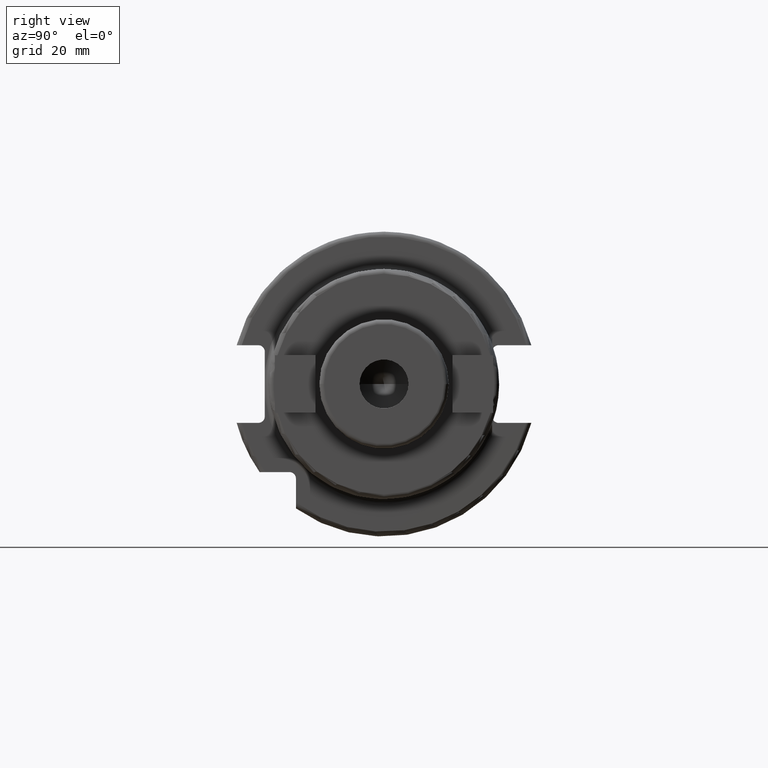
[diagram: clean part render]
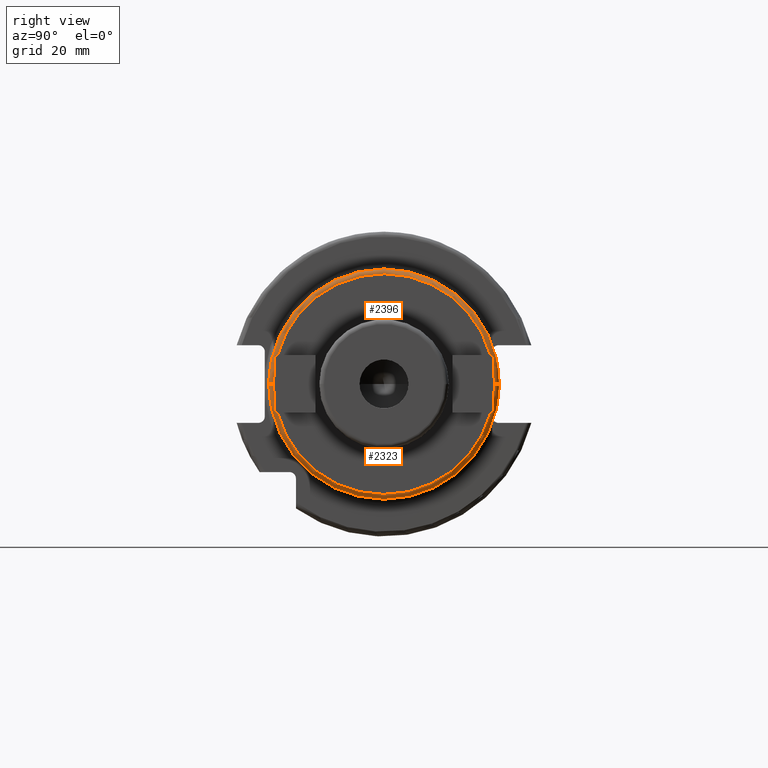
[diagram: same view with one multi-face feature highlighted, each face labeled with its STEP entity id]
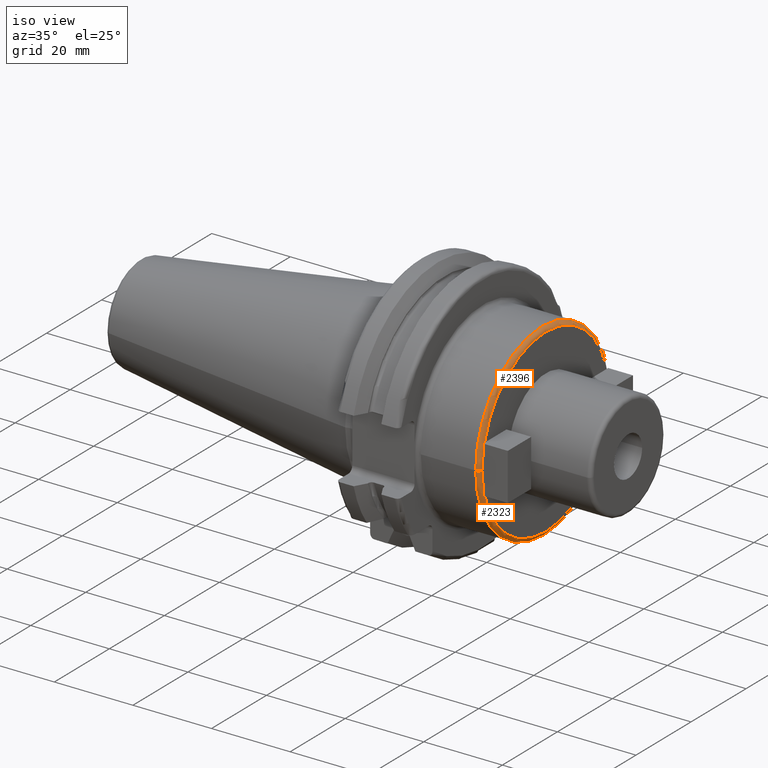
[diagram: same view with one multi-face feature highlighted, each face labeled with its STEP entity id]
A machine part, right view. The highlighted faces form ONE feature: a constant-radius fillet chain: 2 tangent blend faces with common blend radius 1 mm. The faces share edges in the B-rep.
A second angle (iso view) of the same feature is appended — it is thin or edge-on in the first view.
Their STEP definitions:
[1] entity #2323 (Torus):
#331=CARTESIAN_POINT('',(3.4E1,0.E0,0.E0));
#332=DIRECTION('',(1.E0,0.E0,0.E0));
#333=DIRECTION('',(0.E0,-1.E0,0.E0));
#334=AXIS2_PLACEMENT_3D('',#331,#332,#333);
#345=CARTESIAN_POINT('',(3.5E1,0.E0,0.E0));
#346=DIRECTION('',(1.E0,0.E0,0.E0));
#347=DIRECTION('',(0.E0,-9.891304347826E-1,-1.470407528094E-1));
#348=AXIS2_PLACEMENT_3D('',#345,#346,#347);
#350=CARTESIAN_POINT('',(3.5E1,0.E0,0.E0));
#351=DIRECTION('',(1.E0,0.E0,0.E0));
#352=DIRECTION('',(0.E0,9.653740570076E-1,-2.608695652174E-1));
#353=AXIS2_PLACEMENT_3D('',#350,#351,#352);
#355=CARTESIAN_POINT('',(3.4E1,2.3E1,0.E0));
#356=DIRECTION('',(0.E0,0.E0,1.E0));
#357=DIRECTION('',(1.E0,0.E0,0.E0));
#358=AXIS2_PLACEMENT_3D('',#355,#356,#357);
#402=CARTESIAN_POINT('',(3.4E1,-2.3E1,0.E0));
#403=DIRECTION('',(0.E0,0.E0,-1.E0));
#404=DIRECTION('',(1.E0,0.E0,0.E0));
#405=AXIS2_PLACEMENT_3D('',#402,#403,#404);
#429=CARTESIAN_POINT('',(3.5E1,0.E0,0.E0));
#430=DIRECTION('',(1.E0,0.E0,0.E0));
#431=DIRECTION('',(0.E0,-9.653740570076E-1,-2.608695652174E-1));
#432=AXIS2_PLACEMENT_3D('',#429,#430,#431);
#460=CARTESIAN_POINT('',(3.5E1,0.E0,0.E0));
#461=DIRECTION('',(1.E0,0.E0,0.E0));
#462=DIRECTION('',(0.E0,9.891304347826E-1,-1.470407528094E-1));
#463=AXIS2_PLACEMENT_3D('',#460,#461,#462);
#469=CARTESIAN_POINT('',(3.5E1,0.E0,0.E0));
#470=DIRECTION('',(1.E0,0.E0,0.E0));
#471=DIRECTION('',(0.E0,-1.E0,0.E0));
#472=AXIS2_PLACEMENT_3D('',#469,#470,#471);
#1766=CARTESIAN_POINT('',(3.4E1,-2.4E1,0.E0));
#1767=CARTESIAN_POINT('',(3.4E1,2.4E1,0.E0));
#1768=VERTEX_POINT('',#1766);
#1769=VERTEX_POINT('',#1767);
#1774=CARTESIAN_POINT('',(3.5E1,-2.3E1,0.E0));
#1775=VERTEX_POINT('',#1774);
#1776=CARTESIAN_POINT('',(3.5E1,2.3E1,0.E0));
#1777=VERTEX_POINT('',#1776);
#1818=CARTESIAN_POINT('',(3.5E1,2.220360331117E1,-6.E0));
#1819=VERTEX_POINT('',#1818);
#1820=CARTESIAN_POINT('',(3.5E1,2.275E1,-3.381937314617E0));
#1822=VERTEX_POINT('',#1820);
#1829=CARTESIAN_POINT('',(3.5E1,-2.275E1,-3.381937314617E0));
#1831=VERTEX_POINT('',#1829);
#1832=CARTESIAN_POINT('',(3.5E1,-2.220360331117E1,-6.E0));
#1834=VERTEX_POINT('',#1832);
#2301=CARTESIAN_POINT('',(3.4E1,0.E0,0.E0));
#2302=DIRECTION('',(1.E0,0.E0,0.E0));
#2303=DIRECTION('',(0.E0,9.999810241799E-1,6.160461033104E-3));
#2304=AXIS2_PLACEMENT_3D('',#2301,#2302,#2303);
#2305=TOROIDAL_SURFACE('',#2304,2.3E1,1.E0);
#2307=ORIENTED_EDGE('',*,*,#2306,.T.);
#2309=ORIENTED_EDGE('',*,*,#2308,.T.);
#2311=ORIENTED_EDGE('',*,*,#2310,.T.);
#2313=ORIENTED_EDGE('',*,*,#2312,.T.);
#2315=ORIENTED_EDGE('',*,*,#2314,.T.);
#2316=ORIENTED_EDGE('',*,*,#2294,.F.);
#2318=ORIENTED_EDGE('',*,*,#2317,.F.);
#2320=ORIENTED_EDGE('',*,*,#2319,.T.);
#2321=EDGE_LOOP('',(#2307,#2309,#2311,#2313,#2315,#2316,#2318,#2320));
#2322=FACE_OUTER_BOUND('',#2321,.F.);
#2323=ADVANCED_FACE('',(#2322),#2305,.T.);
#335=CIRCLE('',#334,2.4E1);
#349=CIRCLE('',#348,2.3E1);
#354=CIRCLE('',#353,2.3E1);
#359=CIRCLE('',#358,1.E0);
#406=CIRCLE('',#405,1.E0);
#433=CIRCLE('',#432,2.3E1);
#464=CIRCLE('',#463,2.3E1);
#473=CIRCLE('',#472,2.3E1);
#2294=EDGE_CURVE('',#1768,#1769,#335,.T.);
#2306=EDGE_CURVE('',#1831,#1834,#349,.T.);
#2308=EDGE_CURVE('',#1834,#1819,#433,.T.);
#2310=EDGE_CURVE('',#1819,#1822,#354,.T.);
#2312=EDGE_CURVE('',#1822,#1777,#464,.T.);
#2314=EDGE_CURVE('',#1777,#1769,#359,.T.);
#2317=EDGE_CURVE('',#1775,#1768,#406,.T.);
#2319=EDGE_CURVE('',#1775,#1831,#473,.T.);
[2] entity #2396 (Torus):
#308=CARTESIAN_POINT('',(3.4E1,0.E0,0.E0));
#309=DIRECTION('',(1.E0,0.E0,0.E0));
#310=DIRECTION('',(0.E0,1.E0,0.E0));
#311=AXIS2_PLACEMENT_3D('',#308,#309,#310);
#355=CARTESIAN_POINT('',(3.4E1,2.3E1,0.E0));
#356=DIRECTION('',(0.E0,0.E0,1.E0));
#357=DIRECTION('',(1.E0,0.E0,0.E0));
#358=AXIS2_PLACEMENT_3D('',#355,#356,#357);
#392=CARTESIAN_POINT('',(3.5E1,0.E0,0.E0));
#393=DIRECTION('',(1.E0,0.E0,0.E0));
#394=DIRECTION('',(0.E0,9.891304347826E-1,1.470407528094E-1));
#395=AXIS2_PLACEMENT_3D('',#392,#393,#394);
#397=CARTESIAN_POINT('',(3.5E1,0.E0,0.E0));
#398=DIRECTION('',(1.E0,0.E0,0.E0));
#399=DIRECTION('',(0.E0,-9.653740570076E-1,2.608695652174E-1));
#400=AXIS2_PLACEMENT_3D('',#397,#398,#399);
#402=CARTESIAN_POINT('',(3.4E1,-2.3E1,0.E0));
#403=DIRECTION('',(0.E0,0.E0,-1.E0));
#404=DIRECTION('',(1.E0,0.E0,0.E0));
#405=AXIS2_PLACEMENT_3D('',#402,#403,#404);
#446=CARTESIAN_POINT('',(3.5E1,0.E0,0.E0));
#447=DIRECTION('',(1.E0,0.E0,0.E0));
#448=DIRECTION('',(0.E0,9.653740570076E-1,2.608695652174E-1));
#449=AXIS2_PLACEMENT_3D('',#446,#447,#448);
#455=CARTESIAN_POINT('',(3.5E1,0.E0,0.E0));
#456=DIRECTION('',(1.E0,0.E0,0.E0));
#457=DIRECTION('',(0.E0,1.E0,0.E0));
#458=AXIS2_PLACEMENT_3D('',#455,#456,#457);
#474=CARTESIAN_POINT('',(3.5E1,0.E0,0.E0));
#475=DIRECTION('',(1.E0,0.E0,0.E0));
#476=DIRECTION('',(0.E0,-9.891304347826E-1,1.470407528094E-1));
#477=AXIS2_PLACEMENT_3D('',#474,#475,#476);
#1766=CARTESIAN_POINT('',(3.4E1,-2.4E1,0.E0));
#1767=CARTESIAN_POINT('',(3.4E1,2.4E1,0.E0));
#1768=VERTEX_POINT('',#1766);
#1769=VERTEX_POINT('',#1767);
#1774=CARTESIAN_POINT('',(3.5E1,-2.3E1,0.E0));
#1775=VERTEX_POINT('',#1774);
#1776=CARTESIAN_POINT('',(3.5E1,2.3E1,0.E0));
#1777=VERTEX_POINT('',#1776);
#1812=CARTESIAN_POINT('',(3.5E1,2.220360331117E1,6.E0));
#1814=VERTEX_POINT('',#1812);
#1821=CARTESIAN_POINT('',(3.5E1,2.275E1,3.381937314617E0));
#1823=VERTEX_POINT('',#1821);
#1825=CARTESIAN_POINT('',(3.5E1,-2.220360331117E1,6.E0));
#1827=VERTEX_POINT('',#1825);
#1828=CARTESIAN_POINT('',(3.5E1,-2.275E1,3.381937314617E0));
#1830=VERTEX_POINT('',#1828);
#2378=CARTESIAN_POINT('',(3.4E1,0.E0,0.E0));
#2379=DIRECTION('',(1.E0,0.E0,0.E0));
#2380=DIRECTION('',(0.E0,-9.999810241799E-1,-6.160461033104E-3));
#2381=AXIS2_PLACEMENT_3D('',#2378,#2379,#2380);
#2382=TOROIDAL_SURFACE('',#2381,2.3E1,1.E0);
#2383=ORIENTED_EDGE('',*,*,#2329,.T.);
#2385=ORIENTED_EDGE('',*,*,#2384,.T.);
#2386=ORIENTED_EDGE('',*,*,#2343,.T.);
#2388=ORIENTED_EDGE('',*,*,#2387,.T.);
#2389=ORIENTED_EDGE('',*,*,#2317,.T.);
#2390=ORIENTED_EDGE('',*,*,#2266,.F.);
#2391=ORIENTED_EDGE('',*,*,#2314,.F.);
#2393=ORIENTED_EDGE('',*,*,#2392,.T.);
#2394=EDGE_LOOP('',(#2383,#2385,#2386,#2388,#2389,#2390,#2391,#2393));
#2395=FACE_OUTER_BOUND('',#2394,.F.);
#2396=ADVANCED_FACE('',(#2395),#2382,.T.);
#312=CIRCLE('',#311,2.4E1);
#359=CIRCLE('',#358,1.E0);
#396=CIRCLE('',#395,2.3E1);
#401=CIRCLE('',#400,2.3E1);
#406=CIRCLE('',#405,1.E0);
#450=CIRCLE('',#449,2.3E1);
#459=CIRCLE('',#458,2.3E1);
#478=CIRCLE('',#477,2.3E1);
#2266=EDGE_CURVE('',#1769,#1768,#312,.T.);
#2314=EDGE_CURVE('',#1777,#1769,#359,.T.);
#2317=EDGE_CURVE('',#1775,#1768,#406,.T.);
#2329=EDGE_CURVE('',#1823,#1814,#396,.T.);
#2343=EDGE_CURVE('',#1827,#1830,#401,.T.);
#2384=EDGE_CURVE('',#1814,#1827,#450,.T.);
#2387=EDGE_CURVE('',#1830,#1775,#478,.T.);
#2392=EDGE_CURVE('',#1777,#1823,#459,.T.);